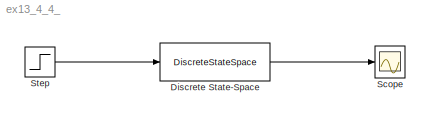
MODEL ex13_4_4_
KIND model
BLOCK [DiscreteStateSpace] Discrete State-Space
  A = FI
  B = TAU
  C = C
  D = D
  SID = 3
BLOCK [Scope] Scope
  DataFormat = StructureWithTime
  Floating = off
  NumInputPorts = 1
  Ports = [1]
  SID = 1
  SampleTime = 0
  ShowLegends = off
BLOCK [Step] Step
  After = [1; 1]
  Before = [0; 0]
  SID = 2
  SampleTime = 0.1
  VectorParams1D = off
LINE Discrete State-Space:1 -> Scope:1
LINE Step:1 -> Discrete State-Space:1
